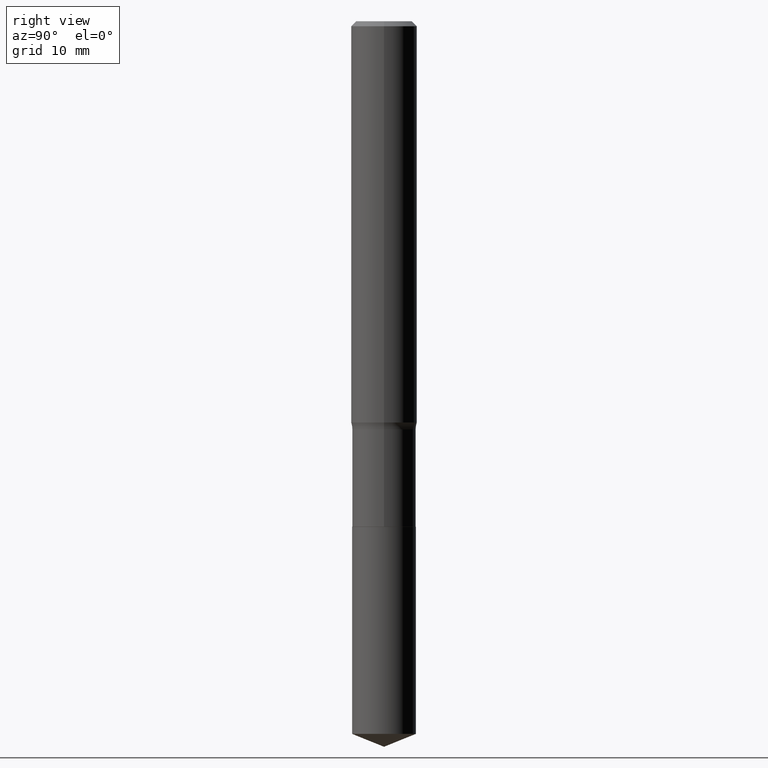
[diagram: clean part render]
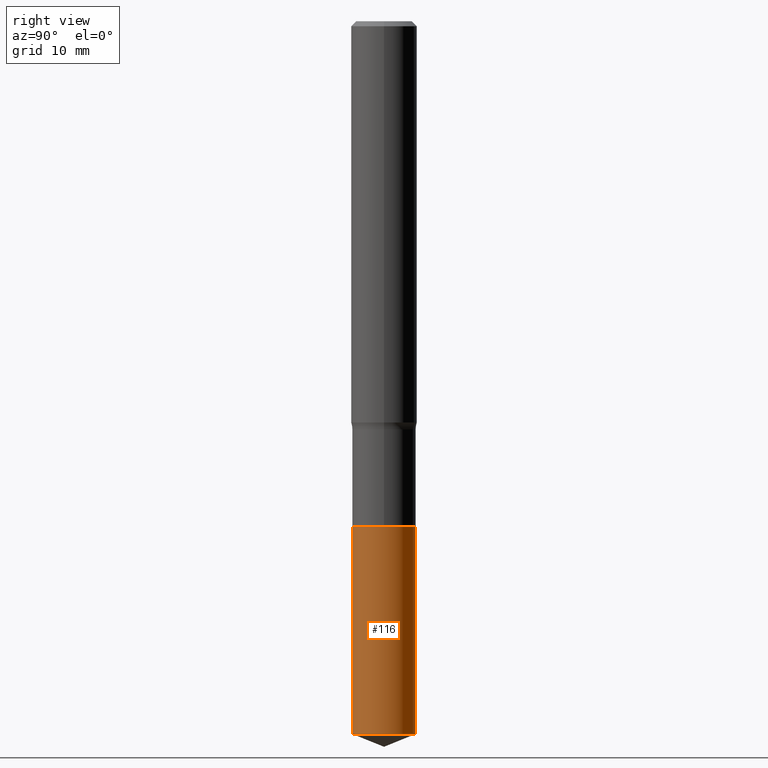
[diagram: same view with one face highlighted and labeled with its STEP entity id]
A machine part, right view. The second image highlights one B-rep face of the part: STEP entity #116.
In plain terms, the highlighted cylindrical surface (edge-blend (fillet) strip) has radius 2.8994 mm, axis along (-0, 0, 1).
Its self-contained STEP definition (entity closure, byte-faithful):
#4 = EDGE_CURVE ( 'NONE', #167, #362, #149, .T. ) ;
#27 = DIRECTION ( 'NONE',  ( -2.431437355357483089E-29, 3.511575175048929728E-15, 1.000000000000000000 ) ) ;
#28 = CYLINDRICAL_SURFACE ( 'NONE', #239, 0.1141500000000000015 ) ;
#48 = LINE ( 'NONE', #396, #168 ) ;
#76 = DIRECTION ( 'NONE',  ( -6.982962677686264344E-15, -1.000000000000000000, 2.393208930060677491E-15 ) ) ;
#112 = CARTESIAN_POINT ( 'NONE',  ( 8.110845328702167912E-16, 0.1141499999999911197, -2.552280406320917905 ) ) ;
#116 = ADVANCED_FACE ( 'NONE', ( #375 ), #28, .T. ) ;
#118 = DIRECTION ( 'NONE',  ( -6.982962677686265922E-15, -1.000000000000000000, 4.786417860121354194E-15 ) ) ;
#130 = ORIENTED_EDGE ( 'NONE', *, *, #449, .T. ) ;
#136 = ORIENTED_EDGE ( 'NONE', *, *, #284, .F. ) ;
#137 = DIRECTION ( 'NONE',  ( -6.982962677686264344E-15, -1.000000000000000000, 2.393208930060677491E-15 ) ) ;
#149 = CIRCLE ( 'NONE', #182, 0.1141500000000000015 ) ;
#161 = CARTESIAN_POINT ( 'NONE',  ( 4.428744008001282238E-29, -6.323072704644935995E-15, -1.810999999999999943 ) ) ;
#167 = VERTEX_POINT ( 'NONE', #486 ) ;
#168 = VECTOR ( 'NONE', #188, 39.37007874015748143 ) ;
#180 = CARTESIAN_POINT ( 'NONE',  ( 4.428744008001282238E-29, -6.323072704644935995E-15, -1.810999999999999943 ) ) ;
#182 = AXIS2_PLACEMENT_3D ( 'NONE', #161, #463, #76 ) ;
#183 = VECTOR ( 'NONE', #27, 39.37007874015748143 ) ;
#188 = DIRECTION ( 'NONE',  ( -2.431437355357483089E-29, 3.511575175048929728E-15, 1.000000000000000000 ) ) ;
#189 = CARTESIAN_POINT ( 'NONE',  ( -7.971051896578252001E-16, -0.1141500000000089804, -2.552280406320917017 ) ) ;
#212 = LINE ( 'NONE', #372, #183 ) ;
#235 = CARTESIAN_POINT ( 'NONE',  ( 6.231120878724535395E-29, -8.926134577231654880E-15, -2.552280406320917461 ) ) ;
#237 = CARTESIAN_POINT ( 'NONE',  ( 8.110845328702166926E-16, 0.1141499999999936732, -1.811000000000000165 ) ) ;
#239 = AXIS2_PLACEMENT_3D ( 'NONE', #180, #296, #137 ) ;
#284 = EDGE_CURVE ( 'NONE', #434, #167, #48, .T. ) ;
#296 = DIRECTION ( 'NONE',  ( -2.431437355357483089E-29, 3.511575175048930123E-15, 1.000000000000000000 ) ) ;
#347 = ORIENTED_EDGE ( 'NONE', *, *, #4, .F. ) ;
#351 = ORIENTED_EDGE ( 'NONE', *, *, #380, .T. ) ;
#362 = VERTEX_POINT ( 'NONE', #237 ) ;
#366 = AXIS2_PLACEMENT_3D ( 'NONE', #235, #391, #118 ) ;
#372 = CARTESIAN_POINT ( 'NONE',  ( 8.110845328701984502E-16, 0.1141499999999936732, -1.811000000000000165 ) ) ;
#375 = FACE_OUTER_BOUND ( 'NONE', #387, .T. ) ;
#380 = EDGE_CURVE ( 'NONE', #382, #362, #212, .T. ) ;
#382 = VERTEX_POINT ( 'NONE', #112 ) ;
#387 = EDGE_LOOP ( 'NONE', ( #130, #351, #347, #136 ) ) ;
#391 = DIRECTION ( 'NONE',  ( -2.431437355357483089E-29, 3.511575175048930123E-15, 1.000000000000000000 ) ) ;
#396 = CARTESIAN_POINT ( 'NONE',  ( -7.971051896578428509E-16, -0.1141500000000063159, -1.810999999999999721 ) ) ;
#434 = VERTEX_POINT ( 'NONE', #189 ) ;
#449 = EDGE_CURVE ( 'NONE', #434, #382, #453, .T. ) ;
#453 = CIRCLE ( 'NONE', #366, 0.1141500000000000153 ) ;
#463 = DIRECTION ( 'NONE',  ( -2.431437355357483089E-29, 3.511575175048930123E-15, 1.000000000000000000 ) ) ;
#486 = CARTESIAN_POINT ( 'NONE',  ( -7.971051896578428509E-16, -0.1141500000000063159, -1.810999999999999721 ) ) ;